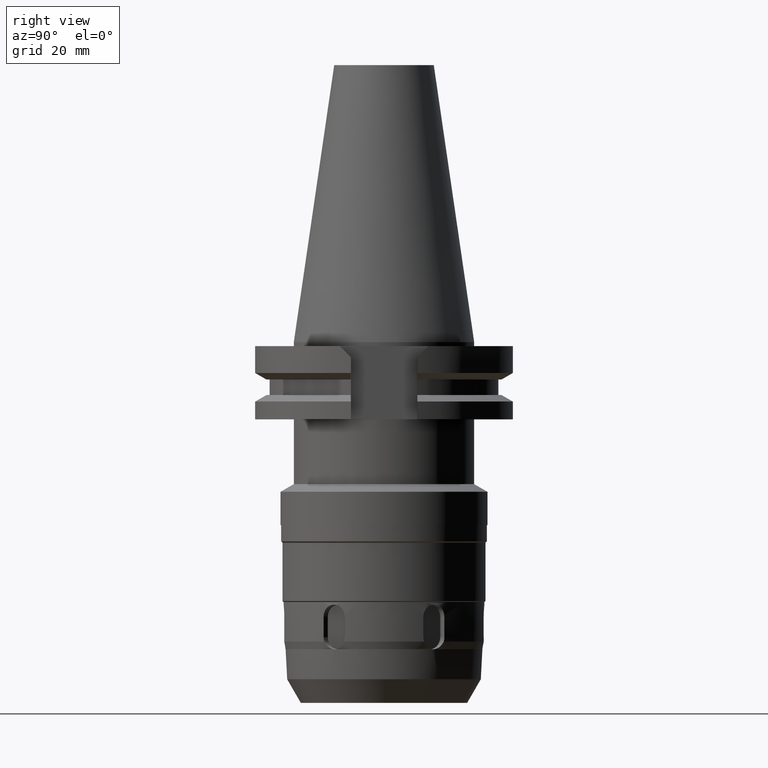
[diagram: clean part render]
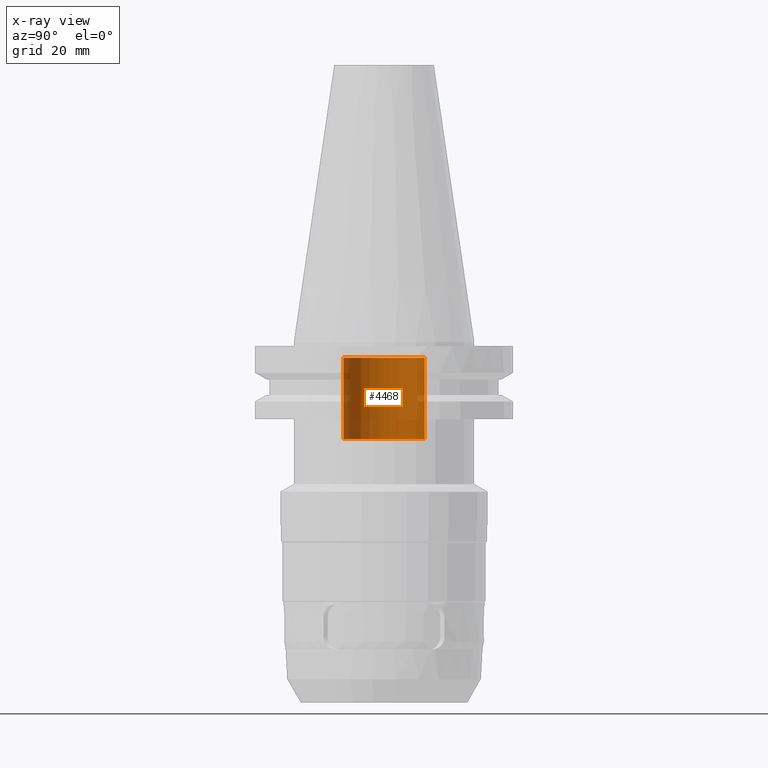
[diagram: x-ray — body ghosted, one internal face saturated and labeled with its STEP entity id]
A machine part, right view, then the same camera in x-ray: the body is ghosted and one INTERNAL B-rep face — a face not visible from any outside direction — is saturated and labeled: STEP entity #4468.
In plain terms, the highlighted cylindrical surface (partial cylindrical patch) has radius 10.025 mm, axis along (0, 0, -1).
Its self-contained STEP definition (entity closure, byte-faithful):
#2210=CARTESIAN_POINT('',(0.E0,2.156694861808E-14,-2.39E1));
#2211=DIRECTION('',(0.E0,0.E0,-1.E0));
#2212=DIRECTION('',(0.E0,-1.E0,0.E0));
#2213=AXIS2_PLACEMENT_3D('',#2210,#2211,#2212);
#2242=DIRECTION('',(0.E0,0.E0,1.E0));
#2243=VECTOR('',#2242,2.E1);
#2244=CARTESIAN_POINT('',(0.E0,-1.0025E1,-2.39E1));
#2245=LINE('',#2244,#2243);
#2249=DIRECTION('',(0.E0,0.E0,1.E0));
#2250=VECTOR('',#2249,2.E1);
#2251=CARTESIAN_POINT('',(0.E0,1.0025E1,-2.39E1));
#2252=LINE('',#2251,#2250);
#2264=CARTESIAN_POINT('',(0.E0,2.156694861808E-14,-3.9E0));
#2265=DIRECTION('',(0.E0,0.E0,1.E0));
#2266=DIRECTION('',(0.E0,1.E0,0.E0));
#2267=AXIS2_PLACEMENT_3D('',#2264,#2265,#2266);
#2576=CARTESIAN_POINT('',(0.E0,-1.0025E1,-3.9E0));
#2577=CARTESIAN_POINT('',(0.E0,1.0025E1,-3.9E0));
#2578=VERTEX_POINT('',#2576);
#2579=VERTEX_POINT('',#2577);
#2580=CARTESIAN_POINT('',(0.E0,1.0025E1,-2.39E1));
#2581=VERTEX_POINT('',#2580);
#2582=CARTESIAN_POINT('',(0.E0,-1.0025E1,-2.39E1));
#2583=VERTEX_POINT('',#2582);
#4454=CARTESIAN_POINT('',(0.E0,2.156694861808E-14,7.61075E1));
#4455=DIRECTION('',(0.E0,0.E0,-1.E0));
#4456=DIRECTION('',(0.E0,-1.E0,0.E0));
#4457=AXIS2_PLACEMENT_3D('',#4454,#4455,#4456);
#4458=CYLINDRICAL_SURFACE('',#4457,1.0025E1);
#4460=ORIENTED_EDGE('',*,*,#4459,.F.);
#4461=ORIENTED_EDGE('',*,*,#4443,.F.);
#4463=ORIENTED_EDGE('',*,*,#4462,.T.);
#4465=ORIENTED_EDGE('',*,*,#4464,.F.);
#4466=EDGE_LOOP('',(#4460,#4461,#4463,#4465));
#4467=FACE_OUTER_BOUND('',#4466,.F.);
#2214=CIRCLE('',#2213,1.0025E1);
#2268=CIRCLE('',#2267,1.0025E1);
#4443=EDGE_CURVE('',#2583,#2581,#2214,.T.);
#4459=EDGE_CURVE('',#2581,#2579,#2252,.T.);
#4462=EDGE_CURVE('',#2583,#2578,#2245,.T.);
#4464=EDGE_CURVE('',#2579,#2578,#2268,.T.);
#4468=ADVANCED_FACE('',(#4467),#4458,.F.);